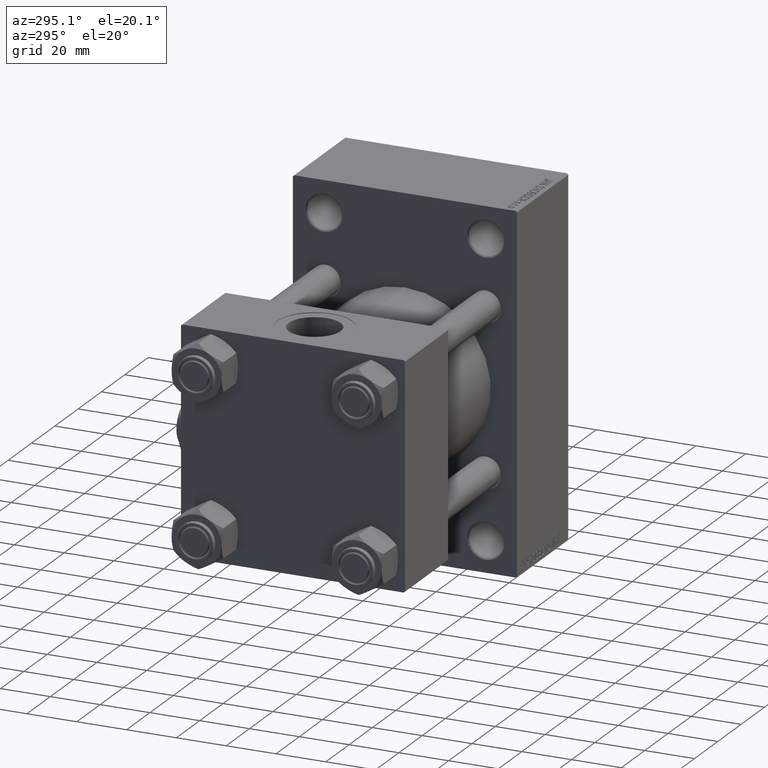
[diagram: clean part render]
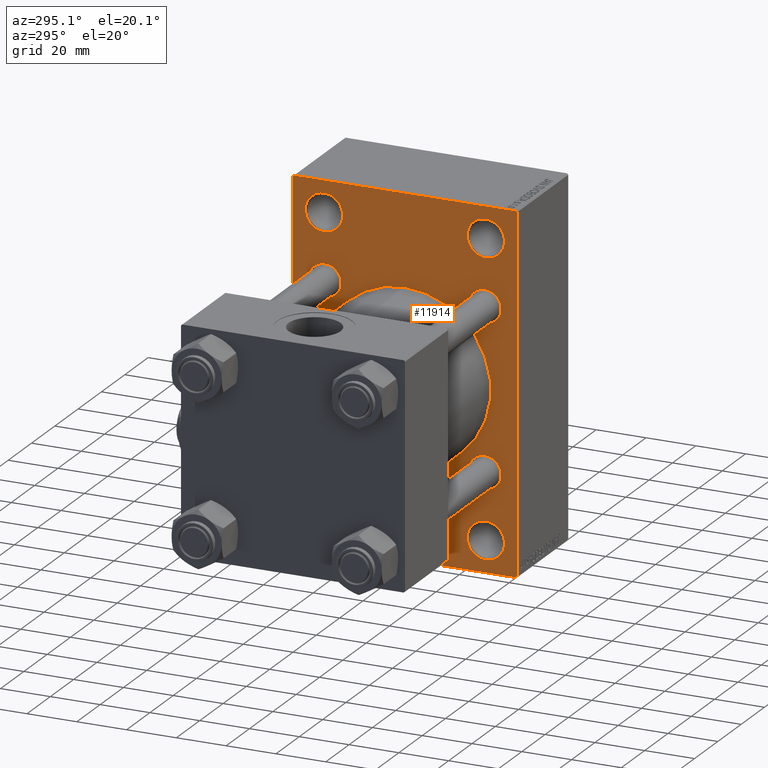
[diagram: same view with one face highlighted and labeled with its STEP entity id]
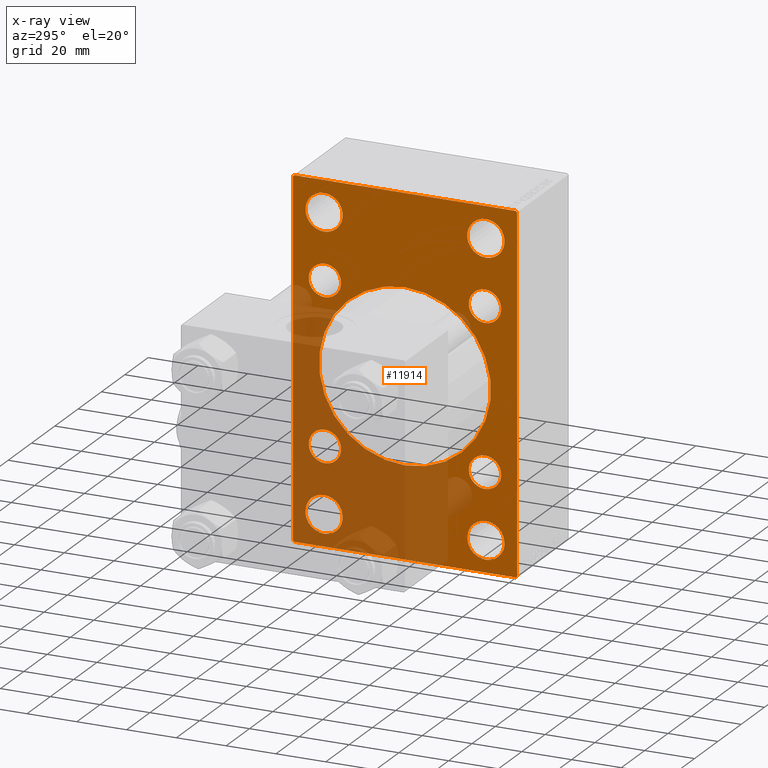
[diagram: x-ray of the same camera — body ghosted, the highlighted face saturated]
A machine part, auxiliary view. The second image highlights one B-rep face of the part: STEP entity #11914.
The next image is the same camera in x-ray: the body ghosted, the highlighted face saturated — about 39% of this face is hidden behind the body in this view.
In plain terms, the highlighted planar face has unit normal (-1, 0, 0).
Its self-contained STEP definition (entity closure, byte-faithful):
#4 = DIRECTION ( 'NONE',  ( 0.000000000000000000, 0.7071067811865474617, -0.7071067811865474617 ) ) ;
#85 = FACE_BOUND ( 'NONE', #8833, .T. ) ;
#144 = EDGE_CURVE ( 'NONE', #30381, #25432, #30775, .T. ) ;
#157 = EDGE_LOOP ( 'NONE', ( #6723, #2407 ) ) ;
#892 = EDGE_LOOP ( 'NONE', ( #27584, #34212, #14713, #28722, #38204, #18252, #9439, #22865 ) ) ;
#1154 = EDGE_LOOP ( 'NONE', ( #47053, #11520 ) ) ;
#1257 = CIRCLE ( 'NONE', #28905, 7.499999999999978684 ) ;
#1284 = VERTEX_POINT ( 'NONE', #48676 ) ;
#1304 = CARTESIAN_POINT ( 'NONE',  ( 96.00000000000000000, -57.75000000000000000, -57.75000000000000000 ) ) ;
#1748 = EDGE_CURVE ( 'NONE', #21193, #1284, #10971, .T. ) ;
#2250 = EDGE_CURVE ( 'NONE', #25432, #30381, #46681, .T. ) ;
#2394 = AXIS2_PLACEMENT_3D ( 'NONE', #32880, #21260, #6170 ) ;
#2407 = ORIENTED_EDGE ( 'NONE', *, *, #43950, .T. ) ;
#2467 = CIRCLE ( 'NONE', #10341, 6.499999999999999112 ) ;
#2769 = CARTESIAN_POINT ( 'NONE',  ( 96.00000000000000000, 45.00000000000000000, 71.00000000000000000 ) ) ;
#3274 = VECTOR ( 'NONE', #43760, 1000.000000000000000 ) ;
#3330 = DIRECTION ( 'NONE',  ( 1.000000000000000000, 0.000000000000000000, 0.000000000000000000 ) ) ;
#3415 = EDGE_CURVE ( 'NONE', #1284, #39900, #29376, .T. ) ;
#3577 = AXIS2_PLACEMENT_3D ( 'NONE', #35784, #17210, #21428 ) ;
#3746 = EDGE_CURVE ( 'NONE', #24809, #38326, #7996, .T. ) ;
#3793 = CARTESIAN_POINT ( 'NONE',  ( 96.00000000000000000, 0.000000000000000000, 0.000000000000000000 ) ) ;
#4539 = VERTEX_POINT ( 'NONE', #6940 ) ;
#4697 = CIRCLE ( 'NONE', #43415, 7.499999999999965361 ) ;
#4748 = AXIS2_PLACEMENT_3D ( 'NONE', #3793, #26308, #18147 ) ;
#5296 = VERTEX_POINT ( 'NONE', #12894 ) ;
#5446 = CARTESIAN_POINT ( 'NONE',  ( 96.00000000000000000, -44.50000000000000000, -71.00000000000000000 ) ) ;
#5551 = VECTOR ( 'NONE', #6545, 1000.000000000000114 ) ;
#5718 = CARTESIAN_POINT ( 'NONE',  ( 96.00000000000000000, -32.50000000000001421, 51.00000000000000711 ) ) ;
#5865 = VERTEX_POINT ( 'NONE', #9800 ) ;
#5915 = CARTESIAN_POINT ( 'NONE',  ( 96.00000000000000000, -2.602085213965210642E-15, 34.50000000000000000 ) ) ;
#6170 = DIRECTION ( 'NONE',  ( 0.000000000000000000, 0.000000000000000000, -1.000000000000000000 ) ) ;
#6323 = AXIS2_PLACEMENT_3D ( 'NONE', #38881, #42839, #12614 ) ;
#6545 = DIRECTION ( 'NONE',  ( -0.000000000000000000, -0.7071067811865474617, -0.7071067811865474617 ) ) ;
#6723 = ORIENTED_EDGE ( 'NONE', *, *, #22915, .T. ) ;
#6940 = CARTESIAN_POINT ( 'NONE',  ( 96.00000000000000000, -45.00000000000000000, -70.50000000000001421 ) ) ;
#6986 = LINE ( 'NONE', #2769, #9577 ) ;
#7505 = CARTESIAN_POINT ( 'NONE',  ( 96.00000000000000000, 32.49999999999998579, -58.49999999999998579 ) ) ;
#7509 = FACE_BOUND ( 'NONE', #21181, .T. ) ;
#7986 = ORIENTED_EDGE ( 'NONE', *, *, #9019, .T. ) ;
#7996 = CIRCLE ( 'NONE', #41221, 7.499999999999978684 ) ;
#8307 = ORIENTED_EDGE ( 'NONE', *, *, #28531, .T. ) ;
#8493 = DIRECTION ( 'NONE',  ( 0.000000000000000000, -0.7071067811865474617, 0.7071067811865474617 ) ) ;
#8508 = VERTEX_POINT ( 'NONE', #38242 ) ;
#8626 = AXIS2_PLACEMENT_3D ( 'NONE', #7505, #41424, #22590 ) ;
#8652 = CARTESIAN_POINT ( 'NONE',  ( 96.00000000000000000, 32.49999999999998579, 58.50000000000000711 ) ) ;
#8833 = EDGE_LOOP ( 'NONE', ( #32493, #34171 ) ) ;
#9019 = EDGE_CURVE ( 'NONE', #22187, #10177, #18053, .T. ) ;
#9312 = EDGE_CURVE ( 'NONE', #30398, #37777, #13342, .T. ) ;
#9351 = DIRECTION ( 'NONE',  ( 0.000000000000000000, 0.000000000000000000, 1.000000000000000000 ) ) ;
#9422 = CIRCLE ( 'NONE', #44245, 6.499999999999999112 ) ;
#9439 = ORIENTED_EDGE ( 'NONE', *, *, #37875, .T. ) ;
#9577 = VECTOR ( 'NONE', #21834, 1000.000000000000000 ) ;
#9714 = CARTESIAN_POINT ( 'NONE',  ( 96.00000000000000000, -2.602085213965210642E-15, 0.000000000000000000 ) ) ;
#9800 = CARTESIAN_POINT ( 'NONE',  ( 96.00000000000000000, 32.14999999999999147, 38.65000000000001279 ) ) ;
#10046 = CARTESIAN_POINT ( 'NONE',  ( 96.00000000000000000, 32.49999999999998579, -58.49999999999998579 ) ) ;
#10177 = VERTEX_POINT ( 'NONE', #22841 ) ;
#10341 = AXIS2_PLACEMENT_3D ( 'NONE', #44968, #41507, #15011 ) ;
#10672 = VERTEX_POINT ( 'NONE', #35144 ) ;
#10971 = LINE ( 'NONE', #26062, #5551 ) ;
#11136 = CARTESIAN_POINT ( 'NONE',  ( 96.00000000000000000, -32.50000000000001421, -58.49999999999998579 ) ) ;
#11331 = DIRECTION ( 'NONE',  ( 1.000000000000000000, 0.000000000000000000, 0.000000000000000000 ) ) ;
#11410 = DIRECTION ( 'NONE',  ( 1.000000000000000000, 0.000000000000000000, 0.000000000000000000 ) ) ;
#11425 = DIRECTION ( 'NONE',  ( 0.000000000000000000, 0.000000000000000000, 1.000000000000000000 ) ) ;
#11520 = ORIENTED_EDGE ( 'NONE', *, *, #33375, .T. ) ;
#11663 = CARTESIAN_POINT ( 'NONE',  ( 96.00000000000000000, -57.74999999999997158, 57.74999999999997158 ) ) ;
#11732 = EDGE_CURVE ( 'NONE', #45495, #4539, #30645, .T. ) ;
#11838 = CARTESIAN_POINT ( 'NONE',  ( 96.00000000000000000, -45.00000000000000000, 71.00000000000000000 ) ) ;
#11914 = ADVANCED_FACE ( 'NONE', ( #33246, #18405, #85, #22113, #25572, #14191, #33496, #7509, #37215, #25809 ), #37939, .T. ) ;
#12239 = ORIENTED_EDGE ( 'NONE', *, *, #40700, .T. ) ;
#12387 = EDGE_CURVE ( 'NONE', #37777, #30398, #37179, .T. ) ;
#12614 = DIRECTION ( 'NONE',  ( 0.000000000000000000, 0.000000000000000000, 1.000000000000000000 ) ) ;
#12685 = DIRECTION ( 'NONE',  ( 1.000000000000000000, 0.000000000000000000, 0.000000000000000000 ) ) ;
#12894 = CARTESIAN_POINT ( 'NONE',  ( 96.00000000000000000, -32.14999999999997726, 25.65000000000000213 ) ) ;
#13257 = CARTESIAN_POINT ( 'NONE',  ( 96.00000000000000000, -44.49999999999994316, 71.00000000000000000 ) ) ;
#13342 = CIRCLE ( 'NONE', #8626, 7.499999999999965361 ) ;
#13587 = EDGE_CURVE ( 'NONE', #39900, #4539, #38451, .T. ) ;
#14191 = FACE_BOUND ( 'NONE', #31573, .T. ) ;
#14432 = EDGE_CURVE ( 'NONE', #47066, #43832, #28533, .T. ) ;
#14713 = ORIENTED_EDGE ( 'NONE', *, *, #11732, .F. ) ;
#14960 = EDGE_CURVE ( 'NONE', #5296, #10672, #2467, .T. ) ;
#15011 = DIRECTION ( 'NONE',  ( 0.000000000000000000, 0.000000000000000000, 1.000000000000000000 ) ) ;
#15277 = EDGE_CURVE ( 'NONE', #5865, #17077, #31714, .T. ) ;
#15318 = EDGE_CURVE ( 'NONE', #8508, #45371, #6986, .T. ) ;
#16691 = CARTESIAN_POINT ( 'NONE',  ( 96.00000000000000000, 45.00000000000000000, -70.49999999999997158 ) ) ;
#17077 = VERTEX_POINT ( 'NONE', #17204 ) ;
#17204 = CARTESIAN_POINT ( 'NONE',  ( 96.00000000000000000, 32.14999999999999147, 25.64999999999998792 ) ) ;
#17210 = DIRECTION ( 'NONE',  ( 1.000000000000000000, 0.000000000000000000, 0.000000000000000000 ) ) ;
#17348 = ORIENTED_EDGE ( 'NONE', *, *, #2250, .T. ) ;
#17402 = CARTESIAN_POINT ( 'NONE',  ( 96.00000000000000000, -32.14999999999997726, -25.64999999999999858 ) ) ;
#17505 = DIRECTION ( 'NONE',  ( 1.000000000000000000, 0.000000000000000000, 0.000000000000000000 ) ) ;
#17603 = DIRECTION ( 'NONE',  ( 0.000000000000000000, 0.000000000000000000, -1.000000000000000000 ) ) ;
#17755 = ORIENTED_EDGE ( 'NONE', *, *, #14432, .T. ) ;
#18053 = CIRCLE ( 'NONE', #45726, 6.500000000000005329 ) ;
#18147 = DIRECTION ( 'NONE',  ( -0.000000000000000000, 0.000000000000000000, 1.000000000000000000 ) ) ;
#18252 = ORIENTED_EDGE ( 'NONE', *, *, #44689, .T. ) ;
#18405 = FACE_BOUND ( 'NONE', #157, .T. ) ;
#18706 = VERTEX_POINT ( 'NONE', #43276 ) ;
#18782 = DIRECTION ( 'NONE',  ( 0.000000000000000000, 0.000000000000000000, -1.000000000000000000 ) ) ;
#19012 = AXIS2_PLACEMENT_3D ( 'NONE', #10046, #48177, #20950 ) ;
#19671 = CIRCLE ( 'NONE', #32408, 7.500000000000000000 ) ;
#19707 = DIRECTION ( 'NONE',  ( 0.000000000000000000, 0.000000000000000000, 1.000000000000000000 ) ) ;
#19959 = CARTESIAN_POINT ( 'NONE',  ( 96.00000000000000000, 32.49999999999998579, 58.50000000000000711 ) ) ;
#20806 = AXIS2_PLACEMENT_3D ( 'NONE', #26441, #26683, #48505 ) ;
#20950 = DIRECTION ( 'NONE',  ( 0.000000000000000000, 0.000000000000000000, 1.000000000000000000 ) ) ;
#21147 = EDGE_LOOP ( 'NONE', ( #7986, #21859 ) ) ;
#21181 = EDGE_LOOP ( 'NONE', ( #17755, #21815 ) ) ;
#21193 = VERTEX_POINT ( 'NONE', #16691 ) ;
#21211 = CARTESIAN_POINT ( 'NONE',  ( 96.00000000000000000, -32.14999999999997726, -32.15000000000000568 ) ) ;
#21260 = DIRECTION ( 'NONE',  ( 1.000000000000000000, 0.000000000000000000, 0.000000000000000000 ) ) ;
#21331 = CIRCLE ( 'NONE', #6323, 6.500000000000005329 ) ;
#21428 = DIRECTION ( 'NONE',  ( 0.000000000000000000, 0.000000000000000000, 1.000000000000000000 ) ) ;
#21815 = ORIENTED_EDGE ( 'NONE', *, *, #26811, .T. ) ;
#21834 = DIRECTION ( 'NONE',  ( 0.000000000000000000, -1.000000000000000000, 0.000000000000000000 ) ) ;
#21859 = ORIENTED_EDGE ( 'NONE', *, *, #38788, .T. ) ;
#22113 = FACE_BOUND ( 'NONE', #29331, .T. ) ;
#22128 = DIRECTION ( 'NONE',  ( 0.000000000000000000, 0.000000000000000000, 1.000000000000000000 ) ) ;
#22187 = VERTEX_POINT ( 'NONE', #43929 ) ;
#22590 = DIRECTION ( 'NONE',  ( 0.000000000000000000, 0.000000000000000000, 1.000000000000000000 ) ) ;
#22775 = VERTEX_POINT ( 'NONE', #37832 ) ;
#22841 = CARTESIAN_POINT ( 'NONE',  ( 96.00000000000000000, 32.14999999999999147, -38.65000000000000568 ) ) ;
#22865 = ORIENTED_EDGE ( 'NONE', *, *, #1748, .T. ) ;
#22915 = EDGE_CURVE ( 'NONE', #38684, #33514, #31856, .T. ) ;
#24809 = VERTEX_POINT ( 'NONE', #48603 ) ;
#25432 = VERTEX_POINT ( 'NONE', #5915 ) ;
#25572 = FACE_BOUND ( 'NONE', #30864, .T. ) ;
#25809 = FACE_OUTER_BOUND ( 'NONE', #892, .T. ) ;
#26062 = CARTESIAN_POINT ( 'NONE',  ( 96.00000000000000000, 57.74999999999997158, -57.74999999999997158 ) ) ;
#26228 = DIRECTION ( 'NONE',  ( 1.000000000000000000, 0.000000000000000000, 0.000000000000000000 ) ) ;
#26308 = DIRECTION ( 'NONE',  ( -1.000000000000000000, 0.000000000000000000, -0.000000000000000000 ) ) ;
#26441 = CARTESIAN_POINT ( 'NONE',  ( 96.00000000000000000, -32.50000000000001421, -58.49999999999998579 ) ) ;
#26683 = DIRECTION ( 'NONE',  ( 1.000000000000000000, 0.000000000000000000, 0.000000000000000000 ) ) ;
#26797 = VECTOR ( 'NONE', #4, 1000.000000000000114 ) ;
#26811 = EDGE_CURVE ( 'NONE', #43832, #47066, #31211, .T. ) ;
#26917 = CARTESIAN_POINT ( 'NONE',  ( 96.00000000000000000, 32.49999999999998579, 65.99999999999998579 ) ) ;
#27206 = DIRECTION ( 'NONE',  ( 1.000000000000000000, 0.000000000000000000, 0.000000000000000000 ) ) ;
#27584 = ORIENTED_EDGE ( 'NONE', *, *, #3415, .T. ) ;
#27655 = VECTOR ( 'NONE', #18782, 1000.000000000000000 ) ;
#28021 = DIRECTION ( 'NONE',  ( 0.000000000000000000, 0.000000000000000000, -1.000000000000000000 ) ) ;
#28484 = ORIENTED_EDGE ( 'NONE', *, *, #15277, .T. ) ;
#28531 = EDGE_CURVE ( 'NONE', #38326, #24809, #1257, .T. ) ;
#28533 = CIRCLE ( 'NONE', #38845, 6.500000000000005329 ) ;
#28720 = LINE ( 'NONE', #48036, #26797 ) ;
#28722 = ORIENTED_EDGE ( 'NONE', *, *, #34676, .T. ) ;
#28905 = AXIS2_PLACEMENT_3D ( 'NONE', #8652, #27206, #46044 ) ;
#29331 = EDGE_LOOP ( 'NONE', ( #8307, #41338 ) ) ;
#29376 = LINE ( 'NONE', #44000, #3274 ) ;
#29592 = CARTESIAN_POINT ( 'NONE',  ( 96.00000000000000000, -45.00000000000000000, 70.49999999999997158 ) ) ;
#29764 = ORIENTED_EDGE ( 'NONE', *, *, #41749, .T. ) ;
#29832 = ORIENTED_EDGE ( 'NONE', *, *, #14960, .T. ) ;
#30057 = CARTESIAN_POINT ( 'NONE',  ( 96.00000000000000000, -32.50000000000001421, 58.50000000000001421 ) ) ;
#30224 = CARTESIAN_POINT ( 'NONE',  ( 96.00000000000000000, 32.14999999999999147, -32.14999999999999858 ) ) ;
#30381 = VERTEX_POINT ( 'NONE', #31580 ) ;
#30398 = VERTEX_POINT ( 'NONE', #43248 ) ;
#30477 = LINE ( 'NONE', #11663, #48844 ) ;
#30645 = LINE ( 'NONE', #11838, #27655 ) ;
#30775 = CIRCLE ( 'NONE', #48167, 34.50000000000000000 ) ;
#30864 = EDGE_LOOP ( 'NONE', ( #12239, #29832 ) ) ;
#31211 = CIRCLE ( 'NONE', #3577, 6.500000000000005329 ) ;
#31573 = EDGE_LOOP ( 'NONE', ( #28484, #29764 ) ) ;
#31580 = CARTESIAN_POINT ( 'NONE',  ( 96.00000000000000000, 1.622946243093158675E-15, -34.50000000000000000 ) ) ;
#31714 = CIRCLE ( 'NONE', #38030, 6.500000000000005329 ) ;
#31856 = CIRCLE ( 'NONE', #20806, 7.499999999999965361 ) ;
#32087 = AXIS2_PLACEMENT_3D ( 'NONE', #44426, #3330, #22128 ) ;
#32350 = DIRECTION ( 'NONE',  ( 0.000000000000000000, 0.000000000000000000, 1.000000000000000000 ) ) ;
#32408 = AXIS2_PLACEMENT_3D ( 'NONE', #30057, #45174, #32350 ) ;
#32493 = ORIENTED_EDGE ( 'NONE', *, *, #9312, .T. ) ;
#32880 = CARTESIAN_POINT ( 'NONE',  ( 96.00000000000000000, -2.602085213965210642E-15, 0.000000000000000000 ) ) ;
#33246 = FACE_BOUND ( 'NONE', #1154, .T. ) ;
#33363 = CARTESIAN_POINT ( 'NONE',  ( 96.00000000000000000, -32.14999999999997726, 32.15000000000000568 ) ) ;
#33375 = EDGE_CURVE ( 'NONE', #36570, #22775, #36048, .T. ) ;
#33496 = FACE_BOUND ( 'NONE', #21147, .T. ) ;
#33514 = VERTEX_POINT ( 'NONE', #38206 ) ;
#33923 = DIRECTION ( 'NONE',  ( 0.000000000000000000, 0.000000000000000000, 1.000000000000000000 ) ) ;
#34171 = ORIENTED_EDGE ( 'NONE', *, *, #12387, .T. ) ;
#34212 = ORIENTED_EDGE ( 'NONE', *, *, #13587, .T. ) ;
#34676 = EDGE_CURVE ( 'NONE', #45495, #45371, #30477, .T. ) ;
#35144 = CARTESIAN_POINT ( 'NONE',  ( 96.00000000000000000, -32.14999999999997726, 38.65000000000001279 ) ) ;
#35419 = CIRCLE ( 'NONE', #38617, 6.500000000000005329 ) ;
#35736 = DIRECTION ( 'NONE',  ( 1.000000000000000000, 0.000000000000000000, 0.000000000000000000 ) ) ;
#35784 = CARTESIAN_POINT ( 'NONE',  ( 96.00000000000000000, -32.14999999999997726, -32.15000000000000568 ) ) ;
#36048 = CIRCLE ( 'NONE', #32087, 7.500000000000000000 ) ;
#36209 = CARTESIAN_POINT ( 'NONE',  ( 96.00000000000000000, 32.14999999999999147, -32.14999999999999858 ) ) ;
#36570 = VERTEX_POINT ( 'NONE', #5718 ) ;
#36658 = CARTESIAN_POINT ( 'NONE',  ( 96.00000000000000000, -32.50000000000001421, -51.00000000000001421 ) ) ;
#37179 = CIRCLE ( 'NONE', #19012, 7.499999999999965361 ) ;
#37215 = FACE_BOUND ( 'NONE', #45722, .T. ) ;
#37777 = VERTEX_POINT ( 'NONE', #43361 ) ;
#37799 = VECTOR ( 'NONE', #17603, 1000.000000000000000 ) ;
#37832 = CARTESIAN_POINT ( 'NONE',  ( 96.00000000000000000, -32.50000000000001421, 66.00000000000002842 ) ) ;
#37875 = EDGE_CURVE ( 'NONE', #18706, #21193, #43612, .T. ) ;
#37939 = PLANE ( 'NONE',  #4748 ) ;
#38030 = AXIS2_PLACEMENT_3D ( 'NONE', #45349, #44375, #11425 ) ;
#38204 = ORIENTED_EDGE ( 'NONE', *, *, #15318, .F. ) ;
#38206 = CARTESIAN_POINT ( 'NONE',  ( 96.00000000000000000, -32.50000000000001421, -65.99999999999994316 ) ) ;
#38242 = CARTESIAN_POINT ( 'NONE',  ( 96.00000000000000000, 44.50000000000002842, 71.00000000000000000 ) ) ;
#38326 = VERTEX_POINT ( 'NONE', #26917 ) ;
#38451 = LINE ( 'NONE', #1304, #44326 ) ;
#38617 = AXIS2_PLACEMENT_3D ( 'NONE', #30224, #11410, #33923 ) ;
#38684 = VERTEX_POINT ( 'NONE', #36658 ) ;
#38788 = EDGE_CURVE ( 'NONE', #10177, #22187, #35419, .T. ) ;
#38845 = AXIS2_PLACEMENT_3D ( 'NONE', #21211, #17505, #9351 ) ;
#38881 = CARTESIAN_POINT ( 'NONE',  ( 96.00000000000000000, 32.14999999999999147, 32.14999999999999858 ) ) ;
#39900 = VERTEX_POINT ( 'NONE', #5446 ) ;
#40605 = CARTESIAN_POINT ( 'NONE',  ( 96.00000000000000000, -32.14999999999997726, -38.65000000000001279 ) ) ;
#40700 = EDGE_CURVE ( 'NONE', #10672, #5296, #9422, .T. ) ;
#40870 = CARTESIAN_POINT ( 'NONE',  ( 96.00000000000000000, 45.00000000000000000, 71.00000000000000000 ) ) ;
#41221 = AXIS2_PLACEMENT_3D ( 'NONE', #19959, #42015, #19707 ) ;
#41338 = ORIENTED_EDGE ( 'NONE', *, *, #3746, .T. ) ;
#41347 = DIRECTION ( 'NONE',  ( 0.000000000000000000, 0.000000000000000000, 1.000000000000000000 ) ) ;
#41395 = DIRECTION ( 'NONE',  ( -0.000000000000000000, 0.7071067811865474617, 0.7071067811865474617 ) ) ;
#41424 = DIRECTION ( 'NONE',  ( 1.000000000000000000, 0.000000000000000000, 0.000000000000000000 ) ) ;
#41507 = DIRECTION ( 'NONE',  ( 1.000000000000000000, 0.000000000000000000, 0.000000000000000000 ) ) ;
#41749 = EDGE_CURVE ( 'NONE', #17077, #5865, #21331, .T. ) ;
#42015 = DIRECTION ( 'NONE',  ( 1.000000000000000000, 0.000000000000000000, 0.000000000000000000 ) ) ;
#42839 = DIRECTION ( 'NONE',  ( 1.000000000000000000, 0.000000000000000000, 0.000000000000000000 ) ) ;
#42943 = DIRECTION ( 'NONE',  ( 0.000000000000000000, 0.000000000000000000, 1.000000000000000000 ) ) ;
#43248 = CARTESIAN_POINT ( 'NONE',  ( 96.00000000000000000, 32.49999999999998579, -51.00000000000001421 ) ) ;
#43276 = CARTESIAN_POINT ( 'NONE',  ( 96.00000000000000000, 45.00000000000000000, 70.50000000000001421 ) ) ;
#43361 = CARTESIAN_POINT ( 'NONE',  ( 96.00000000000000000, 32.49999999999998579, -65.99999999999994316 ) ) ;
#43362 = EDGE_CURVE ( 'NONE', #22775, #36570, #19671, .T. ) ;
#43415 = AXIS2_PLACEMENT_3D ( 'NONE', #11136, #26228, #41347 ) ;
#43612 = LINE ( 'NONE', #40870, #37799 ) ;
#43760 = DIRECTION ( 'NONE',  ( 0.000000000000000000, -1.000000000000000000, 0.000000000000000000 ) ) ;
#43832 = VERTEX_POINT ( 'NONE', #40605 ) ;
#43929 = CARTESIAN_POINT ( 'NONE',  ( 96.00000000000000000, 32.14999999999999147, -25.64999999999999147 ) ) ;
#43950 = EDGE_CURVE ( 'NONE', #33514, #38684, #4697, .T. ) ;
#44000 = CARTESIAN_POINT ( 'NONE',  ( 96.00000000000000000, 45.00000000000000000, -71.00000000000000000 ) ) ;
#44245 = AXIS2_PLACEMENT_3D ( 'NONE', #33363, #11331, #48965 ) ;
#44326 = VECTOR ( 'NONE', #8493, 1000.000000000000114 ) ;
#44375 = DIRECTION ( 'NONE',  ( 1.000000000000000000, 0.000000000000000000, 0.000000000000000000 ) ) ;
#44426 = CARTESIAN_POINT ( 'NONE',  ( 96.00000000000000000, -32.50000000000001421, 58.50000000000001421 ) ) ;
#44689 = EDGE_CURVE ( 'NONE', #8508, #18706, #28720, .T. ) ;
#44968 = CARTESIAN_POINT ( 'NONE',  ( 96.00000000000000000, -32.14999999999997726, 32.15000000000000568 ) ) ;
#45174 = DIRECTION ( 'NONE',  ( 1.000000000000000000, 0.000000000000000000, 0.000000000000000000 ) ) ;
#45349 = CARTESIAN_POINT ( 'NONE',  ( 96.00000000000000000, 32.14999999999999147, 32.14999999999999858 ) ) ;
#45371 = VERTEX_POINT ( 'NONE', #13257 ) ;
#45495 = VERTEX_POINT ( 'NONE', #29592 ) ;
#45722 = EDGE_LOOP ( 'NONE', ( #17348, #47553 ) ) ;
#45726 = AXIS2_PLACEMENT_3D ( 'NONE', #36209, #35736, #42943 ) ;
#46044 = DIRECTION ( 'NONE',  ( 0.000000000000000000, 0.000000000000000000, 1.000000000000000000 ) ) ;
#46681 = CIRCLE ( 'NONE', #2394, 34.50000000000000000 ) ;
#47053 = ORIENTED_EDGE ( 'NONE', *, *, #43362, .T. ) ;
#47066 = VERTEX_POINT ( 'NONE', #17402 ) ;
#47553 = ORIENTED_EDGE ( 'NONE', *, *, #144, .T. ) ;
#48036 = CARTESIAN_POINT ( 'NONE',  ( 96.00000000000000000, 57.75000000000000000, 57.75000000000000000 ) ) ;
#48167 = AXIS2_PLACEMENT_3D ( 'NONE', #9714, #12685, #28021 ) ;
#48177 = DIRECTION ( 'NONE',  ( 1.000000000000000000, 0.000000000000000000, 0.000000000000000000 ) ) ;
#48505 = DIRECTION ( 'NONE',  ( 0.000000000000000000, 0.000000000000000000, 1.000000000000000000 ) ) ;
#48603 = CARTESIAN_POINT ( 'NONE',  ( 96.00000000000000000, 32.49999999999998579, 51.00000000000002842 ) ) ;
#48676 = CARTESIAN_POINT ( 'NONE',  ( 96.00000000000000000, 44.49999999999997158, -71.00000000000000000 ) ) ;
#48844 = VECTOR ( 'NONE', #41395, 1000.000000000000114 ) ;
#48965 = DIRECTION ( 'NONE',  ( 0.000000000000000000, 0.000000000000000000, 1.000000000000000000 ) ) ;